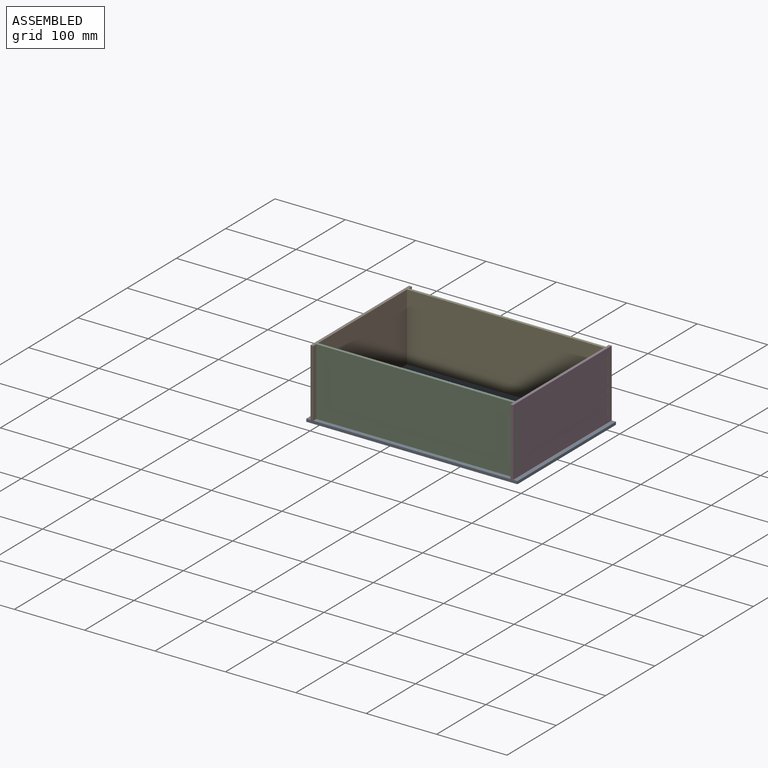
[diagram: assembled view]
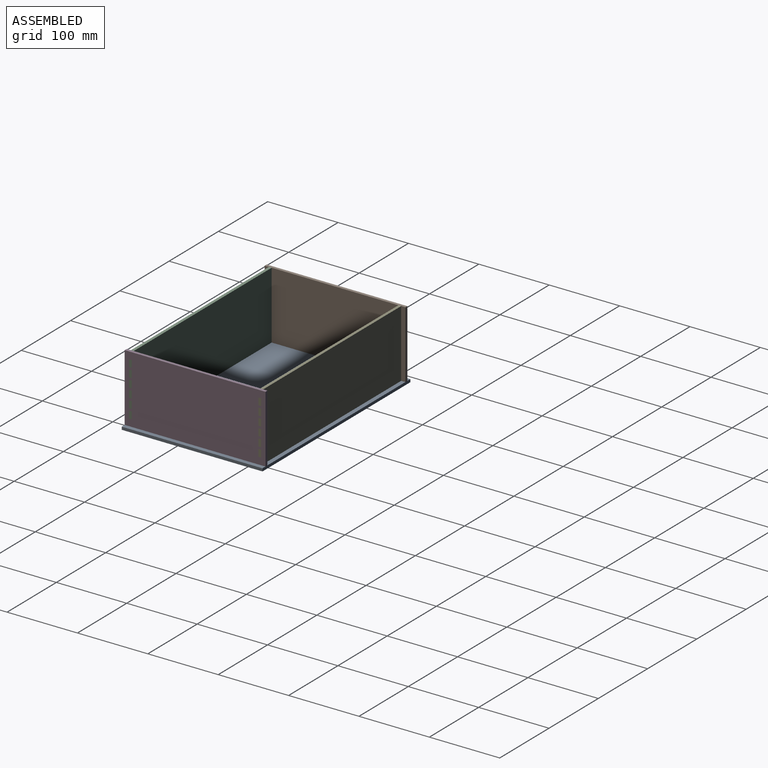
[diagram: assembled view, second angle]
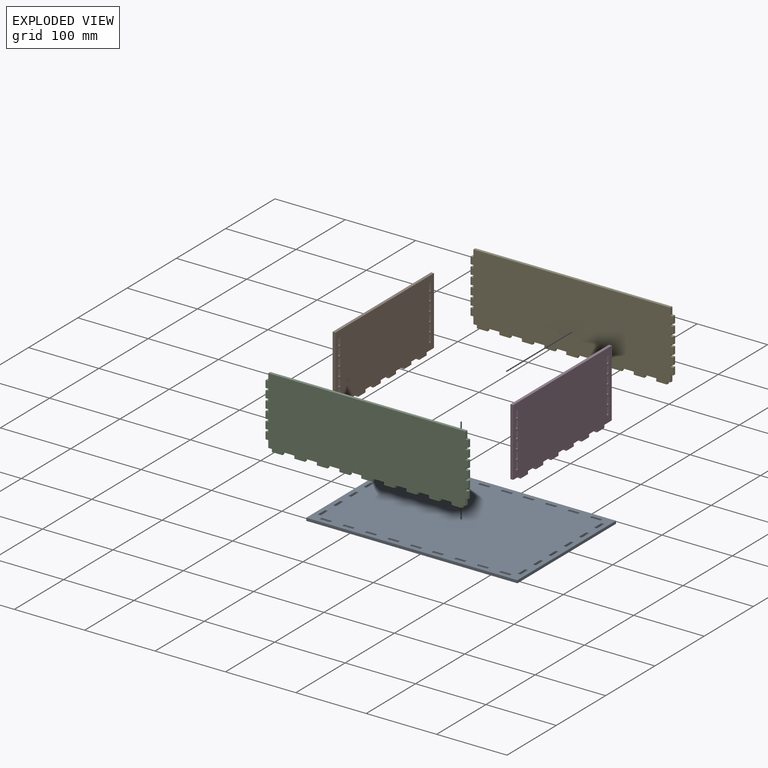
[diagram: exploded view]
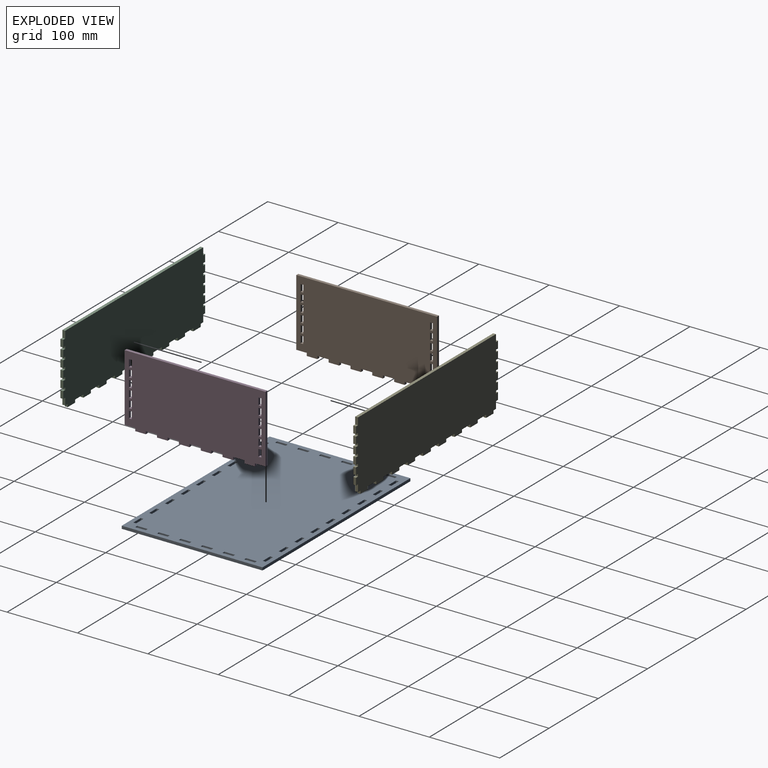
[diagram: exploded view, second angle]
ASSEMBLY  parts=5 mates=8
PART A: 126 faces, bbox 300x200x4 mm
  f0: plane 15x4mm, normal (1,0,0), area 60mm2, adj f1,f123,f124,f125
  f1: plane 4x4mm, normal (0,-1,0), area 16mm2, adj f0,f2,f124,f125
  f2: plane 15x4mm, normal (-1,0,0), area 60mm2, adj f1,f123,f124,f125
  f3: plane 15x4mm, normal (1,0,0), area 60mm2, adj f4,f93,f124,f125
  f4: plane 4x4mm, normal (0,-1,0), area 16mm2, adj f3,f5,f124,f125
  f5: plane 15x4mm, normal (-1,0,0), area 60mm2, adj f4,f93,f124,f125
  f6: plane 15x4mm, normal (1,0,0), area 60mm2, adj f7,f94,f124,f125
  f7: plane 4x4mm, normal (0,-1,0), area 16mm2, adj f6,f8,f124,f125
  f8: plane 15x4mm, normal (-1,0,0), area 60mm2, adj f7,f94,f124,f125
  f9: plane 15x4mm, normal (1,0,0), area 60mm2, adj f10,f95,f124,f125
  f10: plane 4x4mm, normal (0,-1,0), area 16mm2, adj f9,f11,f124,f125
  f11: plane 15x4mm, normal (-1,0,0), area 60mm2, adj f10,f95,f124,f125
  f12: plane 4x4mm, normal (0,-1,0), area 16mm2, adj f13,f96,f124,f125
  f13: plane 15x4mm, normal (-1,0,0), area 60mm2, adj f12,f14,f124,f125
  f14: plane 4x4mm, normal (0,1,0), area 16mm2, adj f13,f96,f124,f125
  f15: plane 4x4mm, normal (0,-1,0), area 16mm2, adj f16,f97,f124,f125
  f16: plane 15x4mm, normal (-1,0,0), area 60mm2, adj f15,f17,f124,f125
  f17: plane 4x4mm, normal (0,1,0), area 16mm2, adj f16,f97,f124,f125
  f18: plane 4x4mm, normal (0,-1,0), area 16mm2, adj f19,f98,f124,f125
  f19: plane 15x4mm, normal (-1,0,0), area 60mm2, adj f18,f20,f124,f125
  f20: plane 4x4mm, normal (0,1,0), area 16mm2, adj f19,f98,f124,f125
  f21: plane 4x4mm, normal (0,-1,0), area 16mm2, adj f22,f99,f124,f125
  f22: plane 15x4mm, normal (-1,0,0), area 60mm2, adj f21,f23,f124,f125
  f23: plane 4x4mm, normal (0,1,0), area 16mm2, adj f22,f99,f124,f125
  f24: plane 4x4mm, normal (1,0,0), area 16mm2, adj f25,f100,f124,f125
  f25: plane 15x4mm, normal (0,-1,0), area 60mm2, adj f24,f26,f124,f125
  f26: plane 4x4mm, normal (-1,0,0), area 16mm2, adj f25,f100,f124,f125
  f27: plane 15x4mm, normal (-1,0,0), area 60mm2, adj f28,f101,f124,f125
  f28: plane 4x4mm, normal (0,1,0), area 16mm2, adj f27,f29,f124,f125
  f29: plane 15x4mm, normal (1,0,0), area 60mm2, adj f28,f101,f124,f125
  f30: plane 15x4mm, normal (-1,0,0), area 60mm2, adj f31,f102,f124,f125
  f31: plane 4x4mm, normal (0,1,0), area 16mm2, adj f30,f32,f124,f125
  f32: plane 15x4mm, normal (1,0,0), area 60mm2, adj f31,f102,f124,f125
  f33: plane 15x4mm, normal (0,-1,0), area 60mm2, adj f34,f103,f124,f125
  f34: plane 4x4mm, normal (-1,0,0), area 16mm2, adj f33,f35,f124,f125
  f35: plane 15x4mm, normal (0,1,0), area 60mm2, adj f34,f103,f124,f125
  f36: plane 15x4mm, normal (0,-1,0), area 60mm2, adj f37,f104,f124,f125
  f37: plane 4x4mm, normal (-1,0,0), area 16mm2, adj f36,f38,f124,f125
  f38: plane 15x4mm, normal (0,1,0), area 60mm2, adj f37,f104,f124,f125
  f39: plane 15x4mm, normal (0,-1,0), area 60mm2, adj f40,f105,f124,f125
  f40: plane 4x4mm, normal (-1,0,0), area 16mm2, adj f39,f41,f124,f125
  f41: plane 15x4mm, normal (0,1,0), area 60mm2, adj f40,f105,f124,f125
  f42: plane 15x4mm, normal (0,1,0), area 60mm2, adj f43,f106,f124,f125
  f43: plane 4x4mm, normal (1,0,0), area 16mm2, adj f42,f44,f124,f125
  f44: plane 15x4mm, normal (0,-1,0), area 60mm2, adj f43,f106,f124,f125
  f45: plane 4x4mm, normal (1,0,0), area 16mm2, adj f46,f107,f124,f125
  f46: plane 15x4mm, normal (0,-1,0), area 60mm2, adj f45,f47,f124,f125
  f47: plane 4x4mm, normal (-1,0,0), area 16mm2, adj f46,f107,f124,f125
  f48: plane 200x4mm, normal (1,0,0), area 800mm2, adj f49,f108,f124,f125
  f49: plane 300x4mm, normal (0,1,0), area 1200mm2, adj f48,f50,f124,f125
  f50: plane 200x4mm, normal (-1,0,0), area 800mm2, adj f49,f108,f124,f125
  f51: plane 15x4mm, normal (0,1,0), area 60mm2, adj f52,f109,f124,f125
  f52: plane 4x4mm, normal (1,0,0), area 16mm2, adj f51,f53,f124,f125
  f53: plane 15x4mm, normal (0,-1,0), area 60mm2, adj f52,f109,f124,f125
  f54: plane 15x4mm, normal (0,1,0), area 60mm2, adj f55,f110,f124,f125
  f55: plane 4x4mm, normal (1,0,0), area 16mm2, adj f54,f56,f124,f125
  f56: plane 15x4mm, normal (0,-1,0), area 60mm2, adj f55,f110,f124,f125
  f57: plane 15x4mm, normal (0,1,0), area 60mm2, adj f58,f111,f124,f125
  f58: plane 4x4mm, normal (1,0,0), area 16mm2, adj f57,f59,f124,f125
  f59: plane 15x4mm, normal (0,-1,0), area 60mm2, adj f58,f111,f124,f125
  f60: plane 4x4mm, normal (-1,0,0), area 16mm2, adj f61,f112,f124,f125
  f61: plane 15x4mm, normal (0,1,0), area 60mm2, adj f60,f62,f124,f125
  f62: plane 4x4mm, normal (1,0,0), area 16mm2, adj f61,f112,f124,f125
  f63: plane 4x4mm, normal (-1,0,0), area 16mm2, adj f64,f113,f124,f125
  f64: plane 15x4mm, normal (0,1,0), area 60mm2, adj f63,f65,f124,f125
  f65: plane 4x4mm, normal (1,0,0), area 16mm2, adj f64,f113,f124,f125
  f66: plane 4x4mm, normal (-1,0,0), area 16mm2, adj f67,f114,f124,f125
  f67: plane 15x4mm, normal (0,1,0), area 60mm2, adj f66,f68,f124,f125
  f68: plane 4x4mm, normal (1,0,0), area 16mm2, adj f67,f114,f124,f125
  f69: plane 4x4mm, normal (1,0,0), area 16mm2, adj f70,f115,f124,f125
  f70: plane 15x4mm, normal (0,-1,0), area 60mm2, adj f69,f71,f124,f125
  f71: plane 4x4mm, normal (-1,0,0), area 16mm2, adj f70,f115,f124,f125
  f72: plane 4x4mm, normal (1,0,0), area 16mm2, adj f73,f116,f124,f125
  f73: plane 15x4mm, normal (0,-1,0), area 60mm2, adj f72,f74,f124,f125
  f74: plane 4x4mm, normal (-1,0,0), area 16mm2, adj f73,f116,f124,f125
  f75: plane 4x4mm, normal (1,0,0), area 16mm2, adj f76,f117,f124,f125
  f76: plane 15x4mm, normal (0,-1,0), area 60mm2, adj f75,f77,f124,f125
  f77: plane 4x4mm, normal (-1,0,0), area 16mm2, adj f76,f117,f124,f125
  f78: plane 4x4mm, normal (1,0,0), area 16mm2, adj f79,f118,f124,f125
  f79: plane 15x4mm, normal (0,-1,0), area 60mm2, adj f78,f80,f124,f125
  f80: plane 4x4mm, normal (-1,0,0), area 16mm2, adj f79,f118,f124,f125
  f81: plane 4x4mm, normal (1,0,0), area 16mm2, adj f82,f119,f124,f125
  f82: plane 15x4mm, normal (0,-1,0), area 60mm2, adj f81,f83,f124,f125
  f83: plane 4x4mm, normal (-1,0,0), area 16mm2, adj f82,f119,f124,f125
  f84: plane 15x4mm, normal (0,1,0), area 60mm2, adj f85,f120,f124,f125
  f85: plane 4x4mm, normal (1,0,0), area 16mm2, adj f84,f86,f124,f125
  f86: plane 15x4mm, normal (0,-1,0), area 60mm2, adj f85,f120,f124,f125
  f87: plane 4x4mm, normal (0,1,0), area 16mm2, adj f88,f121,f124,f125
  f88: plane 15x4mm, normal (1,0,0), area 60mm2, adj f87,f89,f124,f125
  f89: plane 4x4mm, normal (0,-1,0), area 16mm2, adj f88,f121,f124,f125
  f90: plane 4x4mm, normal (0,1,0), area 16mm2, adj f91,f122,f124,f125
  f91: plane 15x4mm, normal (1,0,0), area 60mm2, adj f90,f92,f124,f125
  f92: plane 4x4mm, normal (0,-1,0), area 16mm2, adj f91,f122,f124,f125
  f93: plane 4x4mm, normal (0,1,0), area 16mm2, adj f3,f5,f124,f125
  f94: plane 4x4mm, normal (0,1,0), area 16mm2, adj f6,f8,f124,f125
  f95: plane 4x4mm, normal (0,1,0), area 16mm2, adj f9,f11,f124,f125
  f96: plane 15x4mm, normal (1,0,0), area 60mm2, adj f12,f14,f124,f125
  f97: plane 15x4mm, normal (1,0,0), area 60mm2, adj f15,f17,f124,f125
  f98: plane 15x4mm, normal (1,0,0), area 60mm2, adj f18,f20,f124,f125
  f99: plane 15x4mm, normal (1,0,0), area 60mm2, adj f21,f23,f124,f125
  f100: plane 15x4mm, normal (0,1,0), area 60mm2, adj f24,f26,f124,f125
  f101: plane 4x4mm, normal (0,-1,0), area 16mm2, adj f27,f29,f124,f125
  f102: plane 4x4mm, normal (0,-1,0), area 16mm2, adj f30,f32,f124,f125
  f103: plane 4x4mm, normal (1,0,0), area 16mm2, adj f33,f35,f124,f125
  f104: plane 4x4mm, normal (1,0,0), area 16mm2, adj f36,f38,f124,f125
  f105: plane 4x4mm, normal (1,0,0), area 16mm2, adj f39,f41,f124,f125
  f106: plane 4x4mm, normal (-1,0,0), area 16mm2, adj f42,f44,f124,f125
  f107: plane 15x4mm, normal (0,1,0), area 60mm2, adj f45,f47,f124,f125
  f108: plane 300x4mm, normal (0,-1,0), area 1200mm2, adj f48,f50,f124,f125
  f109: plane 4x4mm, normal (-1,0,0), area 16mm2, adj f51,f53,f124,f125
  f110: plane 4x4mm, normal (-1,0,0), area 16mm2, adj f54,f56,f124,f125
  f111: plane 4x4mm, normal (-1,0,0), area 16mm2, adj f57,f59,f124,f125
  f112: plane 15x4mm, normal (0,-1,0), area 60mm2, adj f60,f62,f124,f125
  f113: plane 15x4mm, normal (0,-1,0), area 60mm2, adj f63,f65,f124,f125
  f114: plane 15x4mm, normal (0,-1,0), area 60mm2, adj f66,f68,f124,f125
  f115: plane 15x4mm, normal (0,1,0), area 60mm2, adj f69,f71,f124,f125
  f116: plane 15x4mm, normal (0,1,0), area 60mm2, adj f72,f74,f124,f125
  f117: plane 15x4mm, normal (0,1,0), area 60mm2, adj f75,f77,f124,f125
  f118: plane 15x4mm, normal (0,1,0), area 60mm2, adj f78,f80,f124,f125
  f119: plane 15x4mm, normal (0,1,0), area 60mm2, adj f81,f83,f124,f125
  f120: plane 4x4mm, normal (-1,0,0), area 16mm2, adj f84,f86,f124,f125
  f121: plane 15x4mm, normal (-1,0,0), area 60mm2, adj f87,f89,f124,f125
  f122: plane 15x4mm, normal (-1,0,0), area 60mm2, adj f90,f92,f124,f125
  f123: plane 4x4mm, normal (0,1,0), area 16mm2, adj f0,f2,f124,f125
  f124: plane 300x200mm, normal (0,0,1), area 58200mm2, adj f0,f1,f2,f3,f4,f5,f6,f7
  f125: plane 300x200mm, normal (0,0,-1), area 58200mm2, adj f0,f1,f2,f3,f4,f5,f6,f7
PART B: 78 faces, bbox 4x200x100 mm
  f0: plane 200x100mm, normal (1,0,0), area 19080mm2, adj f2,f3,f4,f5,f6,f7,f8,f9
  f1: plane 200x100mm, normal (-1,0,0), area 19080mm2, adj f2,f3,f4,f5,f6,f7,f8,f9
  f2: plane 4x4mm, normal (0,-1,0), area 16mm2, adj f0,f1,f4,f9
  f3: plane 4x4mm, normal (0,1,0), area 16mm2, adj f0,f1,f4,f5
  f4: plane 15x4mm, normal (0,0,-1), area 60mm2, adj f0,f1,f2,f3
  f5: plane 15x4mm, normal (0,0,-1), area 60mm2, adj f0,f1,f3,f26
  f6: plane 4x4mm, normal (0,1,0), area 16mm2, adj f0,f1,f7,f9
  f7: plane 15x4mm, normal (0,0,-1), area 60mm2, adj f0,f1,f6,f8
  f8: plane 4x4mm, normal (0,-1,0), area 16mm2, adj f0,f1,f7,f13
  f9: plane 16x4mm, normal (0,0,-1), area 64mm2, adj f0,f1,f2,f6
  f10: plane 4x4mm, normal (0,1,0), area 16mm2, adj f0,f1,f11,f13
  f11: plane 15x4mm, normal (0,0,-1), area 60mm2, adj f0,f1,f10,f12
  f12: plane 4x4mm, normal (0,-1,0), area 16mm2, adj f0,f1,f11,f17
  f13: plane 16x4mm, normal (0,0,-1), area 64mm2, adj f0,f1,f8,f10
  f14: plane 4x4mm, normal (0,1,0), area 16mm2, adj f0,f1,f15,f17
  f15: plane 15x4mm, normal (0,0,-1), area 60mm2, adj f0,f1,f14,f16
  f16: plane 4x4mm, normal (0,-1,0), area 16mm2, adj f0,f1,f15,f21
  f17: plane 16x4mm, normal (0,0,-1), area 64mm2, adj f0,f1,f12,f14
  f18: plane 4x4mm, normal (0,1,0), area 16mm2, adj f0,f1,f19,f21
  f19: plane 15x4mm, normal (0,0,-1), area 60mm2, adj f0,f1,f18,f20
  f20: plane 4x4mm, normal (0,-1,0), area 16mm2, adj f0,f1,f19,f25
  f21: plane 16x4mm, normal (0,0,-1), area 64mm2, adj f0,f1,f16,f18
  f22: plane 4x4mm, normal (0,1,0), area 16mm2, adj f0,f1,f23,f25
  f23: plane 15x4mm, normal (0,0,-1), area 60mm2, adj f0,f1,f22,f24
  f24: plane 4x4mm, normal (0,-1,0), area 16mm2, adj f0,f1,f23,f29
  f25: plane 16x4mm, normal (0,0,-1), area 64mm2, adj f0,f1,f20,f22
  f26: plane 96x4mm, normal (0,1,0), area 384mm2, adj f0,f1,f5,f28
  f27: plane 96x4mm, normal (0,-1,0), area 384mm2, adj f0,f1,f28,f29
  f28: plane 200x4mm, normal (0,0,1), area 800mm2, adj f0,f1,f26,f27
  f29: plane 15x4mm, normal (0,0,-1), area 60mm2, adj f0,f1,f24,f27
  f30: plane 4x4mm, normal (0,0,1), area 16mm2, adj f0,f1,f31,f33
  f31: plane 10x4mm, normal (0,-1,0), area 40mm2, adj f0,f1,f30,f32
  f32: plane 4x4mm, normal (0,0,-1), area 16mm2, adj f0,f1,f31,f33
  f33: plane 10x4mm, normal (0,1,0), area 40mm2, adj f0,f1,f30,f32
  f34: plane 10x4mm, normal (0,1,0), area 40mm2, adj f0,f1,f35,f37
  f35: plane 4x4mm, normal (0,0,1), area 16mm2, adj f0,f1,f34,f36
  f36: plane 10x4mm, normal (0,-1,0), area 40mm2, adj f0,f1,f35,f37
  f37: plane 4x4mm, normal (0,0,-1), area 16mm2, adj f0,f1,f34,f36
  f38: plane 4x4mm, normal (0,0,-1), area 16mm2, adj f0,f1,f39,f41
  f39: plane 10x4mm, normal (0,1,0), area 40mm2, adj f0,f1,f38,f40
  f40: plane 4x4mm, normal (0,0,1), area 16mm2, adj f0,f1,f39,f41
  f41: plane 10x4mm, normal (0,-1,0), area 40mm2, adj f0,f1,f38,f40
  f42: plane 4x4mm, normal (0,0,-1), area 16mm2, adj f0,f1,f43,f45
  f43: plane 10x4mm, normal (0,1,0), area 40mm2, adj f0,f1,f42,f44
  f44: plane 4x4mm, normal (0,0,1), area 16mm2, adj f0,f1,f43,f45
  f45: plane 10x4mm, normal (0,-1,0), area 40mm2, adj f0,f1,f42,f44
  f46: plane 10x4mm, normal (0,-1,0), area 40mm2, adj f0,f1,f47,f49
  f47: plane 4x4mm, normal (0,0,-1), area 16mm2, adj f0,f1,f46,f48
  f48: plane 10x4mm, normal (0,1,0), area 40mm2, adj f0,f1,f47,f49
  f49: plane 4x4mm, normal (0,0,1), area 16mm2, adj f0,f1,f46,f48
  f50: plane 10x4mm, normal (0,-1,0), area 40mm2, adj f0,f1,f51,f53
  f51: plane 4x4mm, normal (0,0,-1), area 16mm2, adj f0,f1,f50,f52
  f52: plane 10x4mm, normal (0,1,0), area 40mm2, adj f0,f1,f51,f53
  f53: plane 4x4mm, normal (0,0,1), area 16mm2, adj f0,f1,f50,f52
  f54: plane 10x4mm, normal (0,-1,0), area 40mm2, adj f0,f1,f55,f57
  f55: plane 4x4mm, normal (0,0,-1), area 16mm2, adj f0,f1,f54,f56
  f56: plane 10x4mm, normal (0,1,0), area 40mm2, adj f0,f1,f55,f57
  f57: plane 4x4mm, normal (0,0,1), area 16mm2, adj f0,f1,f54,f56
  f58: plane 10x4mm, normal (0,-1,0), area 40mm2, adj f0,f1,f59,f61
  f59: plane 4x4mm, normal (0,0,-1), area 16mm2, adj f0,f1,f58,f60
  f60: plane 10x4mm, normal (0,1,0), area 40mm2, adj f0,f1,f59,f61
  f61: plane 4x4mm, normal (0,0,1), area 16mm2, adj f0,f1,f58,f60
  f62: plane 10x4mm, normal (0,1,0), area 40mm2, adj f0,f1,f63,f65
  f63: plane 4x4mm, normal (0,0,1), area 16mm2, adj f0,f1,f62,f64
  f64: plane 10x4mm, normal (0,-1,0), area 40mm2, adj f0,f1,f63,f65
  f65: plane 4x4mm, normal (0,0,-1), area 16mm2, adj f0,f1,f62,f64
  f66: plane 4x4mm, normal (0,0,-1), area 16mm2, adj f0,f1,f67,f69
  f67: plane 10x4mm, normal (0,1,0), area 40mm2, adj f0,f1,f66,f68
  f68: plane 4x4mm, normal (0,0,1), area 16mm2, adj f0,f1,f67,f69
  f69: plane 10x4mm, normal (0,-1,0), area 40mm2, adj f0,f1,f66,f68
  f70: plane 10x4mm, normal (0,1,0), area 40mm2, adj f0,f1,f71,f73
  f71: plane 4x4mm, normal (0,0,1), area 16mm2, adj f0,f1,f70,f72
  f72: plane 10x4mm, normal (0,-1,0), area 40mm2, adj f0,f1,f71,f73
  f73: plane 4x4mm, normal (0,0,-1), area 16mm2, adj f0,f1,f70,f72
  f74: plane 10x4mm, normal (0,-1,0), area 40mm2, adj f0,f1,f75,f77
  f75: plane 4x4mm, normal (0,0,-1), area 16mm2, adj f0,f1,f74,f76
  f76: plane 10x4mm, normal (0,1,0), area 40mm2, adj f0,f1,f75,f77
  f77: plane 4x4mm, normal (0,0,1), area 16mm2, adj f0,f1,f74,f76
PART C: 90 faces, bbox 288x4x100 mm
  f0: plane 16x4mm, normal (0,0,-1), area 64mm2, adj f8,f11,f37,f89
  f1: plane 4x3.2mm, normal (1,0,0), area 12.8mm2, adj f8,f11,f79,f82
  f2: plane 4x3.2mm, normal (1,0,0), area 12.8mm2, adj f8,f11,f81,f85
  f3: plane 4x3.2mm, normal (1,0,0), area 12.8mm2, adj f8,f11,f84,f87
  f4: plane 4x3.2mm, normal (1,0,0), area 12.8mm2, adj f8,f11,f76,f78
  f5: plane 4x3.2mm, normal (1,0,0), area 12.8mm2, adj f8,f11,f73,f75
  f6: plane 10x4mm, normal (1,0,0), area 40mm2, adj f8,f11,f60,f86
  f7: plane 10x4mm, normal (-1,0,0), area 40mm2, adj f8,f9,f10,f11
  f8: plane 288x100mm, normal (0,-1,0), area 27904mm2, adj f0,f1,f2,f3,f4,f5,f6,f7
  f9: plane 4x4mm, normal (0,0,1), area 16mm2, adj f7,f8,f11,f16
  f10: plane 4x4mm, normal (0,0,-1), area 16mm2, adj f7,f8,f11,f12
  f11: plane 288x100mm, normal (0,1,0), area 27904mm2, adj f0,f1,f2,f3,f4,f5,f6,f7
  f12: plane 4x3.2mm, normal (-1,0,0), area 12.8mm2, adj f8,f10,f11,f63
  f13: plane 10x4mm, normal (-1,0,0), area 40mm2, adj f8,f11,f14,f15
  f14: plane 4x4mm, normal (0,0,-1), area 16mm2, adj f8,f11,f13,f16
  f15: plane 4x4mm, normal (0,0,1), area 16mm2, adj f8,f11,f13,f20
  f16: plane 4x3.2mm, normal (-1,0,0), area 12.8mm2, adj f8,f9,f11,f14
  f17: plane 10x4mm, normal (-1,0,0), area 40mm2, adj f8,f11,f18,f19
  f18: plane 4x4mm, normal (0,0,-1), area 16mm2, adj f8,f11,f17,f20
  f19: plane 4x4mm, normal (0,0,1), area 16mm2, adj f8,f11,f17,f23
  f20: plane 4x3.2mm, normal (-1,0,0), area 12.8mm2, adj f8,f11,f15,f18
  f21: plane 4x3.2mm, normal (-1,0,0), area 12.8mm2, adj f8,f11,f64,f69
  f22: plane 4x3.2mm, normal (-1,0,0), area 12.8mm2, adj f8,f11,f67,f70
  f23: plane 10x4mm, normal (-1,0,0), area 40mm2, adj f8,f11,f19,f60
  f24: plane 4x4mm, normal (-1,0,0), area 16mm2, adj f8,f11,f26,f61
  f25: plane 4x4mm, normal (1,0,0), area 16mm2, adj f8,f11,f26,f27
  f26: plane 15x4mm, normal (0,0,-1), area 60mm2, adj f8,f11,f24,f25
  f27: plane 17x4mm, normal (0,0,-1), area 68mm2, adj f8,f11,f25,f30
  f28: plane 15x4mm, normal (0,0,-1), area 60mm2, adj f8,f11,f29,f30
  f29: plane 4x4mm, normal (1,0,0), area 16mm2, adj f8,f11,f28,f31
  f30: plane 4x4mm, normal (-1,0,0), area 16mm2, adj f8,f11,f27,f28
  f31: plane 17x4mm, normal (0,0,-1), area 68mm2, adj f8,f11,f29,f34
  f32: plane 15x4mm, normal (0,0,-1), area 60mm2, adj f8,f11,f33,f34
  f33: plane 4x4mm, normal (1,0,0), area 16mm2, adj f8,f11,f32,f35
  f34: plane 4x4mm, normal (-1,0,0), area 16mm2, adj f8,f11,f31,f32
  f35: plane 17x4mm, normal (0,0,-1), area 68mm2, adj f8,f11,f33,f38
  f36: plane 15x4mm, normal (0,0,-1), area 60mm2, adj f8,f11,f37,f38
  f37: plane 4x4mm, normal (1,0,0), area 16mm2, adj f0,f8,f11,f36
  f38: plane 4x4mm, normal (-1,0,0), area 16mm2, adj f8,f11,f35,f36
  f39: plane 4x4mm, normal (-1,0,0), area 16mm2, adj f8,f11,f41,f50
  f40: plane 4x4mm, normal (1,0,0), area 16mm2, adj f8,f11,f41,f42
  f41: plane 15x4mm, normal (0,0,-1), area 60mm2, adj f8,f11,f39,f40
  f42: plane 17x4mm, normal (0,0,-1), area 68mm2, adj f8,f11,f40,f53
  f43: plane 4x4mm, normal (1,0,0), area 16mm2, adj f8,f11,f44,f46
  f44: plane 15x4mm, normal (0,0,-1), area 60mm2, adj f8,f11,f43,f45
  f45: plane 4x4mm, normal (-1,0,0), area 16mm2, adj f8,f11,f44,f54
  f46: plane 5x4mm, normal (0,0,-1), area 20mm2, adj f8,f11,f43,f59
  f47: plane 4x4mm, normal (1,0,0), area 16mm2, adj f8,f11,f48,f50
  f48: plane 15x4mm, normal (0,0,-1), area 60mm2, adj f8,f11,f47,f49
  f49: plane 4x4mm, normal (-1,0,0), area 16mm2, adj f8,f11,f48,f57
  f50: plane 17x4mm, normal (0,0,-1), area 68mm2, adj f8,f11,f39,f47
  f51: plane 4x4mm, normal (1,0,0), area 16mm2, adj f8,f11,f52,f54
  f52: plane 15x4mm, normal (0,0,-1), area 60mm2, adj f8,f11,f51,f53
  f53: plane 4x4mm, normal (-1,0,0), area 16mm2, adj f8,f11,f42,f52
  f54: plane 17x4mm, normal (0,0,-1), area 68mm2, adj f8,f11,f45,f51
  f55: plane 16x4mm, normal (0,0,-1), area 64mm2, adj f8,f11,f56,f89
  f56: plane 4x4mm, normal (1,0,0), area 16mm2, adj f8,f11,f55,f57
  f57: plane 16x4mm, normal (0,0,-1), area 64mm2, adj f8,f11,f49,f56
  f58: plane 10x4mm, normal (-1,0,0), area 40mm2, adj f8,f11,f61,f66
  f59: plane 10x4mm, normal (1,0,0), area 40mm2, adj f8,f11,f46,f72
  f60: plane 280x4mm, normal (0,0,1), area 1120mm2, adj f6,f8,f11,f23
  f61: plane 5x4mm, normal (0,0,-1), area 20mm2, adj f8,f11,f24,f58
  f62: plane 10x4mm, normal (-1,0,0), area 40mm2, adj f8,f11,f63,f64
  f63: plane 4x4mm, normal (0,0,1), area 16mm2, adj f8,f11,f12,f62
  f64: plane 4x4mm, normal (0,0,-1), area 16mm2, adj f8,f11,f21,f62
  f65: plane 10x4mm, normal (-1,0,0), area 40mm2, adj f8,f11,f66,f67
  f66: plane 4x4mm, normal (0,0,-1), area 16mm2, adj f8,f11,f58,f65
  f67: plane 4x4mm, normal (0,0,1), area 16mm2, adj f8,f11,f22,f65
  f68: plane 10x4mm, normal (-1,0,0), area 40mm2, adj f8,f11,f69,f70
  f69: plane 4x4mm, normal (0,0,1), area 16mm2, adj f8,f11,f21,f68
  f70: plane 4x4mm, normal (0,0,-1), area 16mm2, adj f8,f11,f22,f68
  f71: plane 10x4mm, normal (1,0,0), area 40mm2, adj f8,f11,f72,f73
  f72: plane 4x4mm, normal (0,0,-1), area 16mm2, adj f8,f11,f59,f71
  f73: plane 4x4mm, normal (0,0,1), area 16mm2, adj f5,f8,f11,f71
  f74: plane 10x4mm, normal (1,0,0), area 40mm2, adj f8,f11,f75,f76
  f75: plane 4x4mm, normal (0,0,-1), area 16mm2, adj f5,f8,f11,f74
  f76: plane 4x4mm, normal (0,0,1), area 16mm2, adj f4,f8,f11,f74
  f77: plane 10x4mm, normal (1,0,0), area 40mm2, adj f8,f11,f78,f79
  f78: plane 4x4mm, normal (0,0,-1), area 16mm2, adj f4,f8,f11,f77
  f79: plane 4x4mm, normal (0,0,1), area 16mm2, adj f1,f8,f11,f77
  f80: plane 10x4mm, normal (1,0,0), area 40mm2, adj f8,f11,f81,f82
  f81: plane 4x4mm, normal (0,0,1), area 16mm2, adj f2,f8,f11,f80
  f82: plane 4x4mm, normal (0,0,-1), area 16mm2, adj f1,f8,f11,f80
  f83: plane 10x4mm, normal (1,0,0), area 40mm2, adj f8,f11,f84,f85
  f84: plane 4x4mm, normal (0,0,1), area 16mm2, adj f3,f8,f11,f83
  f85: plane 4x4mm, normal (0,0,-1), area 16mm2, adj f2,f8,f11,f83
  f86: plane 4x4mm, normal (0,0,1), area 16mm2, adj f6,f8,f11,f88
  f87: plane 4x4mm, normal (0,0,-1), area 16mm2, adj f3,f8,f11,f88
  f88: plane 10x4mm, normal (1,0,0), area 40mm2, adj f8,f11,f86,f87
  f89: plane 4x4mm, normal (-1,0,0), area 16mm2, adj f0,f8,f11,f55
PART D: same geometry as B
PART E: same geometry as C
PLACE A t=(95.45,84.7,-210.08)mm
PLACE B t=(95.45,84.7,-210.08)mm
PLACE C t=(95.45,-99.3,-210.08)mm
PLACE D t=(379.45,84.7,-210.08)mm
PLACE E t=(95.45,84.7,-210.08)mm
MATE fastened C.f29 <-> A.f74  axis (1,0,0) through (7.45,-7.3,-208.08)mm
MATE fastened A.f15 <-> B.f14  axis (0,-1,0) through (-46.55,76.7,-208.08)mm
MATE fastened D.f18 <-> A.f1  axis (0,1,0) through (237.45,45.7,-208.08)mm
MATE fastened C.f86 <-> D.f32  axis (0,0,1) through (237.45,-7.3,-120.08)mm
MATE fastened B.f51 <-> C.f9  axis (0,0,-1) through (-46.55,-7.3,-146.48)mm
MATE fastened E.f84 <-> D.f65  axis (0,0,1) through (237.45,176.7,-133.28)mm
MATE fastened A.f55 <-> E.f34  axis (1,0,0) through (24.45,176.7,-208.08)mm
MATE fastened B.f40 <-> E.f64  axis (0,0,1) through (-46.55,176.7,-169.68)mm
